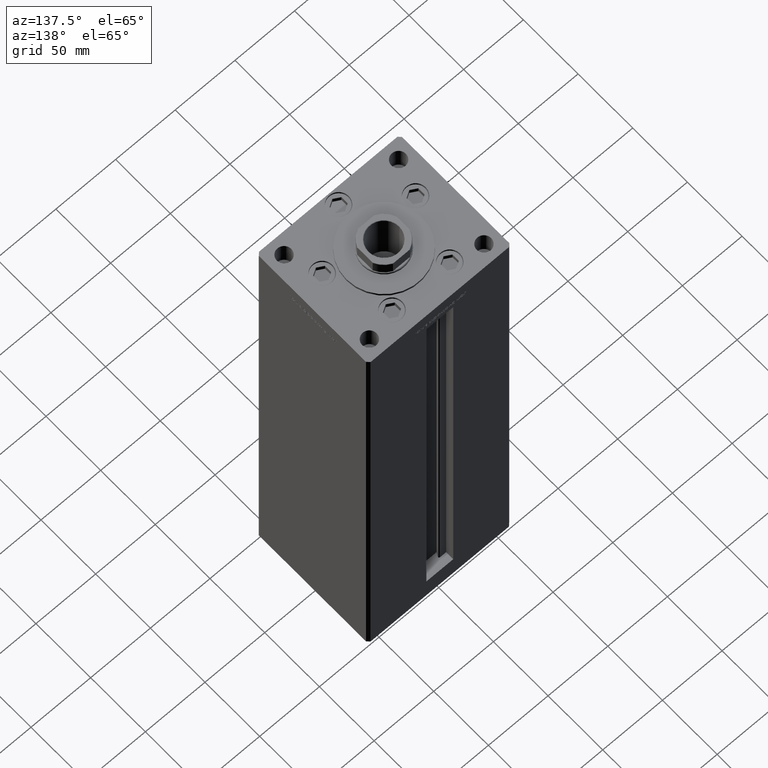
[diagram: clean part render]
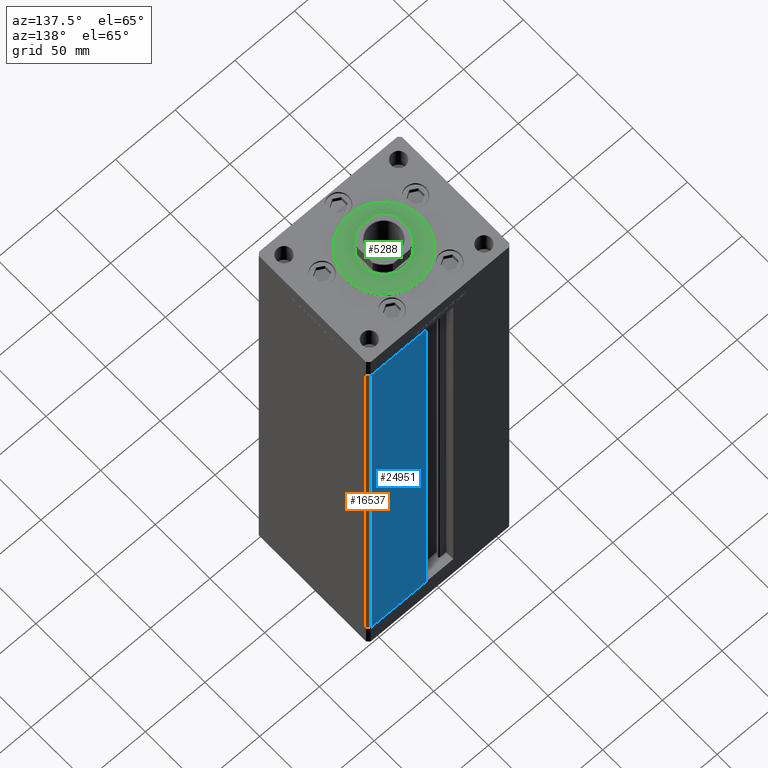
[diagram: same view with three faces highlighted in distinct colors, each labeled with its STEP entity id]
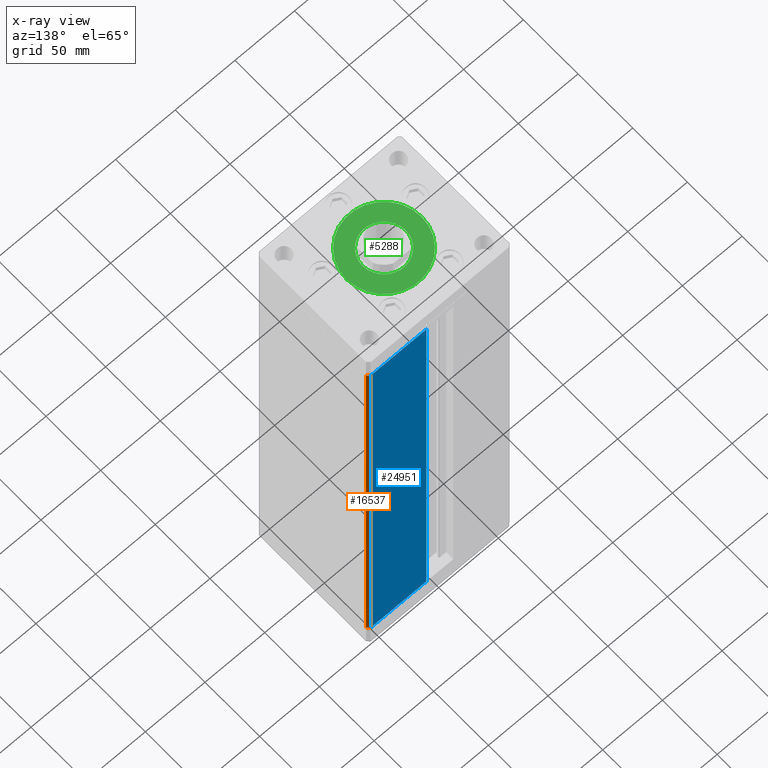
[diagram: x-ray of the same camera — body ghosted, the three highlighted faces saturated]
A machine part, auxiliary view with three faces highlighted in distinct colors.
The next image is the same camera in x-ray (body ghosted, the three faces saturated) — at least one of them is partly hidden behind the body in this view.
Their STEP definitions:

[orange] entity #16537 — the highlighted planar face has unit normal (0.7071, 0.7071, 0).
#1402 = EDGE_CURVE ( 'NONE', #34020, #48480, #49429, .T. ) ;
#3051 = AXIS2_PLACEMENT_3D ( 'NONE', #27196, #27460, #43169 ) ;
#3120 = PLANE ( 'NONE',  #3051 ) ;
#4056 = VECTOR ( 'NONE', #28992, 1000.000000000000114 ) ;
#5805 = LINE ( 'NONE', #21772, #43153 ) ;
#6470 = CARTESIAN_POINT ( 'NONE',  ( 57.99999999999999289, 51.00000000000000711, 0.000000000000000000 ) ) ;
#8542 = CARTESIAN_POINT ( 'NONE',  ( 57.99999999999999289, 51.00000000000000711, 0.000000000000000000 ) ) ;
#14433 = DIRECTION ( 'NONE',  ( -0.000000000000000000, -0.000000000000000000, -1.000000000000000000 ) ) ;
#16537 = ADVANCED_FACE ( 'NONE', ( #35080 ), #3120, .T. ) ;
#17913 = ORIENTED_EDGE ( 'NONE', *, *, #47079, .T. ) ;
#19091 = CARTESIAN_POINT ( 'NONE',  ( 57.99999999999999289, 51.00000000000000711, 368.5000000000000000 ) ) ;
#21656 = LINE ( 'NONE', #49418, #4056 ) ;
#21772 = CARTESIAN_POINT ( 'NONE',  ( 60.00000000000001421, 49.00000000000000000, 368.5000000000000000 ) ) ;
#21917 = DIRECTION ( 'NONE',  ( 0.7071067811865500152, -0.7071067811865451302, 0.000000000000000000 ) ) ;
#23795 = VECTOR ( 'NONE', #51282, 1000.000000000000000 ) ;
#24656 = ORIENTED_EDGE ( 'NONE', *, *, #1402, .F. ) ;
#26824 = ORIENTED_EDGE ( 'NONE', *, *, #40893, .T. ) ;
#27196 = CARTESIAN_POINT ( 'NONE',  ( 57.99999999999999289, 51.00000000000000711, 368.5000000000000000 ) ) ;
#27460 = DIRECTION ( 'NONE',  ( 0.7071067811865451302, 0.7071067811865500152, -0.000000000000000000 ) ) ;
#27669 = CARTESIAN_POINT ( 'NONE',  ( 60.00000000000001421, 49.00000000000000000, 368.5000000000000000 ) ) ;
#28591 = VERTEX_POINT ( 'NONE', #27669 ) ;
#28992 = DIRECTION ( 'NONE',  ( 0.7071067811865500152, -0.7071067811865451302, 0.000000000000000000 ) ) ;
#31521 = EDGE_LOOP ( 'NONE', ( #24656, #32574, #17913, #26824 ) ) ;
#32009 = VECTOR ( 'NONE', #21917, 1000.000000000000114 ) ;
#32017 = CARTESIAN_POINT ( 'NONE',  ( 57.99999999999999289, 51.00000000000000711, 368.5000000000000000 ) ) ;
#32574 = ORIENTED_EDGE ( 'NONE', *, *, #36592, .F. ) ;
#34020 = VERTEX_POINT ( 'NONE', #8542 ) ;
#35080 = FACE_OUTER_BOUND ( 'NONE', #31521, .T. ) ;
#36592 = EDGE_CURVE ( 'NONE', #42939, #34020, #51038, .T. ) ;
#40893 = EDGE_CURVE ( 'NONE', #28591, #48480, #5805, .T. ) ;
#42939 = VERTEX_POINT ( 'NONE', #32017 ) ;
#43153 = VECTOR ( 'NONE', #14433, 1000.000000000000000 ) ;
#43169 = DIRECTION ( 'NONE',  ( -0.7071067811865500152, 0.7071067811865451302, 0.000000000000000000 ) ) ;
#47079 = EDGE_CURVE ( 'NONE', #42939, #28591, #21656, .T. ) ;
#47742 = CARTESIAN_POINT ( 'NONE',  ( 60.00000000000001421, 49.00000000000000000, 0.000000000000000000 ) ) ;
#48480 = VERTEX_POINT ( 'NONE', #47742 ) ;
#49418 = CARTESIAN_POINT ( 'NONE',  ( 57.99999999999999289, 51.00000000000000711, 368.5000000000000000 ) ) ;
#49429 = LINE ( 'NONE', #6470, #32009 ) ;
#51038 = LINE ( 'NONE', #19091, #23795 ) ;
#51282 = DIRECTION ( 'NONE',  ( -0.000000000000000000, -0.000000000000000000, -1.000000000000000000 ) ) ;

[blue] entity #24951 — the highlighted planar face has unit normal (-0, -1, 0).
#1117 = CARTESIAN_POINT ( 'NONE',  ( 11.24999999999999467, 51.00000000000000000, 368.5000000000000000 ) ) ;
#1438 = LINE ( 'NONE', #17427, #24779 ) ;
#3529 = DIRECTION ( 'NONE',  ( 1.000000000000000000, -1.484255380514915423E-16, 0.000000000000000000 ) ) ;
#3787 = CARTESIAN_POINT ( 'NONE',  ( 11.25000000000000178, 51.00000000000000000, 0.000000000000000000 ) ) ;
#3971 = VECTOR ( 'NONE', #37668, 1000.000000000000000 ) ;
#4587 = VECTOR ( 'NONE', #44214, 1000.000000000000000 ) ;
#7722 = CARTESIAN_POINT ( 'NONE',  ( -11.25000000000000178, 51.00000000000000000, 368.5000000000000000 ) ) ;
#8542 = CARTESIAN_POINT ( 'NONE',  ( 57.99999999999999289, 51.00000000000000711, 0.000000000000000000 ) ) ;
#9375 = LINE ( 'NONE', #36633, #4587 ) ;
#9605 = ORIENTED_EDGE ( 'NONE', *, *, #32336, .T. ) ;
#11877 = EDGE_CURVE ( 'NONE', #16889, #42939, #1438, .T. ) ;
#12451 = EDGE_LOOP ( 'NONE', ( #9605, #32990, #37630, #43925 ) ) ;
#16889 = VERTEX_POINT ( 'NONE', #1117 ) ;
#17427 = CARTESIAN_POINT ( 'NONE',  ( -11.25000000000000178, 51.00000000000000000, 368.5000000000000000 ) ) ;
#19091 = CARTESIAN_POINT ( 'NONE',  ( 57.99999999999999289, 51.00000000000000711, 368.5000000000000000 ) ) ;
#20289 = FACE_OUTER_BOUND ( 'NONE', #12451, .T. ) ;
#20513 = EDGE_CURVE ( 'NONE', #43647, #16889, #25873, .T. ) ;
#23795 = VECTOR ( 'NONE', #51282, 1000.000000000000000 ) ;
#24779 = VECTOR ( 'NONE', #36819, 1000.000000000000000 ) ;
#24951 = ADVANCED_FACE ( 'NONE', ( #20289 ), #36270, .F. ) ;
#25873 = LINE ( 'NONE', #29522, #3971 ) ;
#29170 = AXIS2_PLACEMENT_3D ( 'NONE', #7722, #43334, #3529 ) ;
#29522 = CARTESIAN_POINT ( 'NONE',  ( 11.25000000000000178, 51.00000000000000000, 0.000000000000000000 ) ) ;
#32017 = CARTESIAN_POINT ( 'NONE',  ( 57.99999999999999289, 51.00000000000000711, 368.5000000000000000 ) ) ;
#32336 = EDGE_CURVE ( 'NONE', #34020, #43647, #9375, .T. ) ;
#32990 = ORIENTED_EDGE ( 'NONE', *, *, #20513, .T. ) ;
#34020 = VERTEX_POINT ( 'NONE', #8542 ) ;
#36270 = PLANE ( 'NONE',  #29170 ) ;
#36592 = EDGE_CURVE ( 'NONE', #42939, #34020, #51038, .T. ) ;
#36633 = CARTESIAN_POINT ( 'NONE',  ( -11.25000000000000178, 51.00000000000000000, 0.000000000000000000 ) ) ;
#36819 = DIRECTION ( 'NONE',  ( 1.000000000000000000, 0.000000000000000000, 0.000000000000000000 ) ) ;
#37630 = ORIENTED_EDGE ( 'NONE', *, *, #11877, .T. ) ;
#37668 = DIRECTION ( 'NONE',  ( -0.000000000000000000, -0.000000000000000000, 1.000000000000000000 ) ) ;
#42939 = VERTEX_POINT ( 'NONE', #32017 ) ;
#43334 = DIRECTION ( 'NONE',  ( -1.484255380514915423E-16, -1.000000000000000000, 0.000000000000000000 ) ) ;
#43647 = VERTEX_POINT ( 'NONE', #3787 ) ;
#43925 = ORIENTED_EDGE ( 'NONE', *, *, #36592, .T. ) ;
#44214 = DIRECTION ( 'NONE',  ( -1.000000000000000000, 1.484255380514915423E-16, 0.000000000000000000 ) ) ;
#51038 = LINE ( 'NONE', #19091, #23795 ) ;
#51282 = DIRECTION ( 'NONE',  ( -0.000000000000000000, -0.000000000000000000, -1.000000000000000000 ) ) ;

[green] entity #5288 — the highlighted planar face has unit normal (0, 0, 1).
#355 = ORIENTED_EDGE ( 'NONE', *, *, #738, .T. ) ;
#738 = EDGE_CURVE ( 'NONE', #37789, #37903, #45396, .T. ) ;
#847 = DIRECTION ( 'NONE',  ( 1.000000000000000000, 0.000000000000000000, 0.000000000000000000 ) ) ;
#2175 = DIRECTION ( 'NONE',  ( 0.000000000000000000, 0.000000000000000000, 1.000000000000000000 ) ) ;
#4467 = EDGE_CURVE ( 'NONE', #40277, #22555, #46281, .T. ) ;
#4747 = CARTESIAN_POINT ( 'NONE',  ( 0.000000000000000000, -6.938893903907228378E-15, 2.000000000000000000 ) ) ;
#4767 = CARTESIAN_POINT ( 'NONE',  ( 0.000000000000000000, -6.938893903907228378E-15, 2.000000000000000000 ) ) ;
#5288 = ADVANCED_FACE ( 'NONE', ( #13969, #29929 ), #10050, .T. ) ;
#6883 = DIRECTION ( 'NONE',  ( 1.000000000000000000, 0.000000000000000000, -0.000000000000000000 ) ) ;
#8539 = EDGE_LOOP ( 'NONE', ( #20596, #355 ) ) ;
#10050 = PLANE ( 'NONE',  #14567 ) ;
#13421 = CARTESIAN_POINT ( 'NONE',  ( 0.000000000000000000, -6.938893903907228378E-15, 2.000000000000000000 ) ) ;
#13969 = FACE_BOUND ( 'NONE', #21838, .T. ) ;
#14567 = AXIS2_PLACEMENT_3D ( 'NONE', #26015, #2175, #6883 ) ;
#17853 = DIRECTION ( 'NONE',  ( 1.000000000000000000, 0.000000000000000000, 0.000000000000000000 ) ) ;
#18112 = DIRECTION ( 'NONE',  ( 0.000000000000000000, 0.000000000000000000, 1.000000000000000000 ) ) ;
#18867 = CARTESIAN_POINT ( 'NONE',  ( -18.00000000000000000, -4.734529665441992555E-15, 2.000000000000000000 ) ) ;
#19255 = ORIENTED_EDGE ( 'NONE', *, *, #21456, .F. ) ;
#20327 = AXIS2_PLACEMENT_3D ( 'NONE', #4767, #28595, #847 ) ;
#20596 = ORIENTED_EDGE ( 'NONE', *, *, #36230, .T. ) ;
#20721 = CARTESIAN_POINT ( 'NONE',  ( 0.000000000000000000, -6.938893903907228378E-15, 2.000000000000000000 ) ) ;
#20723 = DIRECTION ( 'NONE',  ( 1.000000000000000000, 0.000000000000000000, 0.000000000000000000 ) ) ;
#21456 = EDGE_CURVE ( 'NONE', #22555, #40277, #28275, .T. ) ;
#21838 = EDGE_LOOP ( 'NONE', ( #41943, #19255 ) ) ;
#22555 = VERTEX_POINT ( 'NONE', #18867 ) ;
#23026 = CARTESIAN_POINT ( 'NONE',  ( 18.00000000000000000, -6.938893903907228378E-15, 2.000000000000000000 ) ) ;
#23718 = AXIS2_PLACEMENT_3D ( 'NONE', #4747, #45058, #20723 ) ;
#26015 = CARTESIAN_POINT ( 'NONE',  ( 0.000000000000000000, -6.938893903907228378E-15, 2.000000000000000000 ) ) ;
#27975 = AXIS2_PLACEMENT_3D ( 'NONE', #13421, #18112, #17853 ) ;
#28275 = CIRCLE ( 'NONE', #31631, 18.00000000000000000 ) ;
#28595 = DIRECTION ( 'NONE',  ( 0.000000000000000000, 0.000000000000000000, 1.000000000000000000 ) ) ;
#28839 = CIRCLE ( 'NONE', #27975, 31.50000000000000000 ) ;
#29082 = DIRECTION ( 'NONE',  ( 1.000000000000000000, 0.000000000000000000, 0.000000000000000000 ) ) ;
#29929 = FACE_OUTER_BOUND ( 'NONE', #8539, .T. ) ;
#31631 = AXIS2_PLACEMENT_3D ( 'NONE', #20721, #45304, #29082 ) ;
#36230 = EDGE_CURVE ( 'NONE', #37903, #37789, #28839, .T. ) ;
#37789 = VERTEX_POINT ( 'NONE', #49112 ) ;
#37903 = VERTEX_POINT ( 'NONE', #47220 ) ;
#40277 = VERTEX_POINT ( 'NONE', #23026 ) ;
#41943 = ORIENTED_EDGE ( 'NONE', *, *, #4467, .F. ) ;
#45058 = DIRECTION ( 'NONE',  ( 0.000000000000000000, 0.000000000000000000, 1.000000000000000000 ) ) ;
#45304 = DIRECTION ( 'NONE',  ( 0.000000000000000000, 0.000000000000000000, 1.000000000000000000 ) ) ;
#45396 = CIRCLE ( 'NONE', #20327, 31.50000000000000000 ) ;
#46281 = CIRCLE ( 'NONE', #23718, 18.00000000000000000 ) ;
#47220 = CARTESIAN_POINT ( 'NONE',  ( -31.50000000000000000, -6.938893903907228378E-15, 2.000000000000000000 ) ) ;
#49112 = CARTESIAN_POINT ( 'NONE',  ( 31.50000000000000000, -3.081256486593065689E-15, 2.000000000000000000 ) ) ;